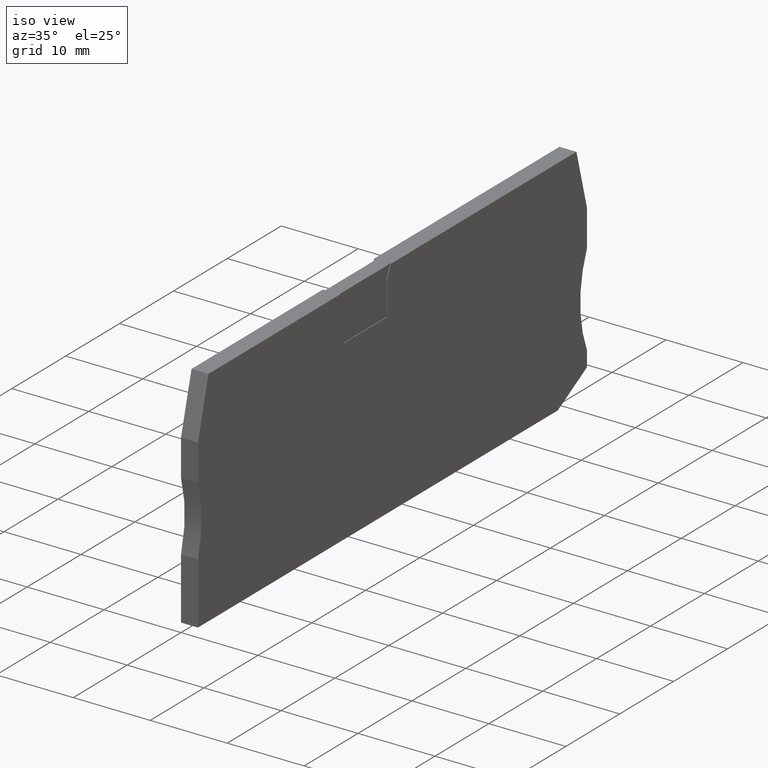
[diagram: clean part render]
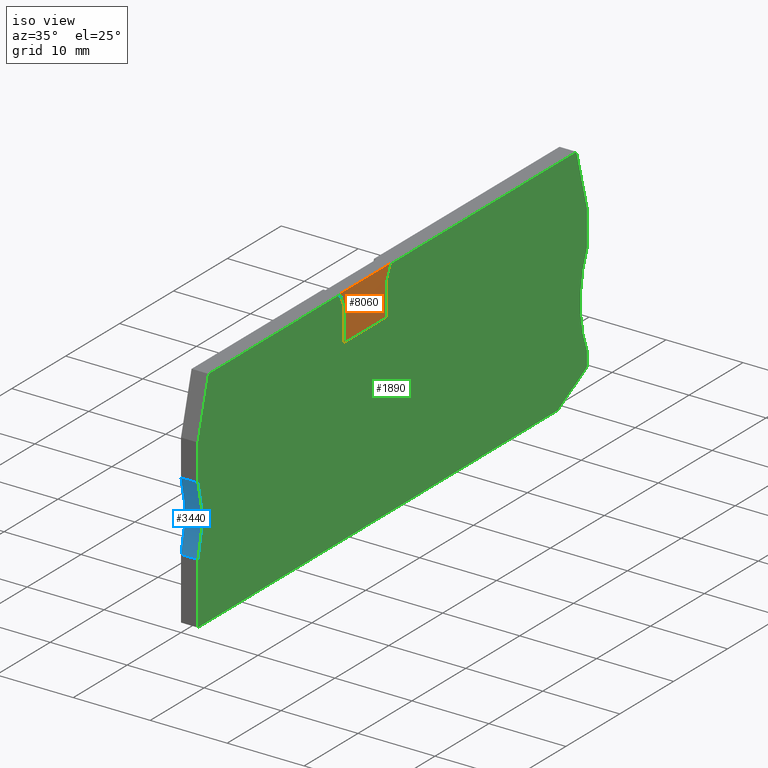
[diagram: same view with three faces highlighted in distinct colors, each labeled with its STEP entity id]
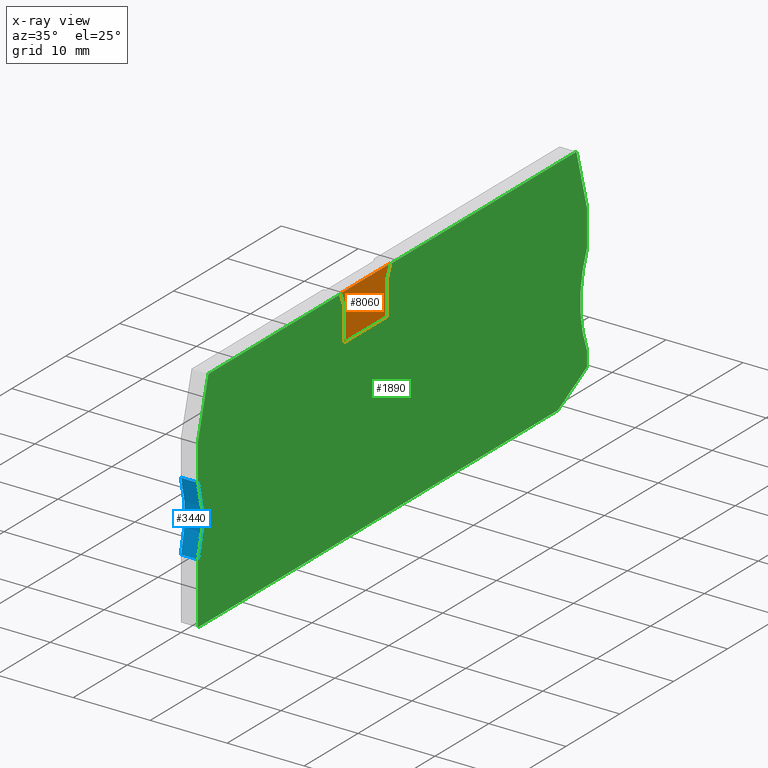
[diagram: x-ray of the same camera — body ghosted, the three highlighted faces saturated]
A machine part, iso view with three faces highlighted in distinct colors.
The next image is the same camera in x-ray (body ghosted, the three faces saturated) — at least one of them is partly hidden behind the body in this view.
Their STEP definitions:

[orange] entity #8060 — the highlighted planar face has unit normal (1, 0, -0).
#4000=CARTESIAN_POINT('',(-7.786332497605,-9.15000000000164,55.27));
#4010=VERTEX_POINT('',#4000);
#4040=CARTESIAN_POINT('',(-6.52682329685704,-12.1300507694268,55.27));
#4050=DIRECTION('',(0.389303997086196,-0.92110933002153,0.));
#4060=VECTOR('',#4050,1.);
#4070=LINE('',#4040,#4060);
#4080=CARTESIAN_POINT('',(-7.06783277832368,-10.8500000000052,55.27));
#4090=VERTEX_POINT('',#4080);
#4100=EDGE_CURVE('',#4010,#4090,#4070,.T.);
#5380=CARTESIAN_POINT('',(-7.06783277832365,-15.1500000000019,55.27));
#5390=VERTEX_POINT('',#5380);
#5420=CARTESIAN_POINT('',(11.4461541156283,-15.1500000000019,55.27));
#5430=DIRECTION('',(1.,-5.55111512312593E-16,0.));
#5440=VECTOR('',#5430,1.);
#5450=LINE('',#5420,#5440);
#5460=CARTESIAN_POINT('',(0.932167221676094,-15.1500000000019,55.27));
#5470=VERTEX_POINT('',#5460);
#5480=EDGE_CURVE('',#5390,#5470,#5450,.T.);
#6850=CARTESIAN_POINT('',(0.932167221676098,-12.1300507694268,55.27));
#6860=DIRECTION('',(-1.05471187339379E-15,-1.,0.));
#6870=VECTOR('',#6860,1.);
#6880=LINE('',#6850,#6870);
#6890=CARTESIAN_POINT('',(0.932167221676108,-10.8499999999525,55.27));
#6900=VERTEX_POINT('',#6890);
#6910=EDGE_CURVE('',#6900,#5470,#6880,.T.);
#7200=CARTESIAN_POINT('',(1.65066694096119,-9.15000000000164,55.27));
#7210=VERTEX_POINT('',#7200);
#7240=CARTESIAN_POINT('',(11.4461541156283,-9.15000000000164,55.27));
#7250=DIRECTION('',(1.,0.,0.));
#7260=VECTOR('',#7250,1.);
#7270=LINE('',#7240,#7260);
#7280=EDGE_CURVE('',#4010,#7210,#7270,.T.);
#7830=CARTESIAN_POINT('',(0.96970121366197,-34.6750000000019,55.27));
#7840=DIRECTION('',(0.,0.,1.));
#7850=DIRECTION('',(1.,0.,0.));
#7860=AXIS2_PLACEMENT_3D('',#7830,#7840,#7850);
#7870=PLANE('',#7860);
#7880=ORIENTED_EDGE('',*,*,#7280,.F.);
#7890=CARTESIAN_POINT('',(0.391157740167493,-12.1300507694268,55.27));
#7900=DIRECTION('',(0.389303997098189,0.921109330016461,0.));
#7910=VECTOR('',#7900,1.);
#7920=LINE('',#7890,#7910);
#7930=EDGE_CURVE('',#6900,#7210,#7920,.T.);
#7940=ORIENTED_EDGE('',*,*,#7930,.T.);
#7950=ORIENTED_EDGE('',*,*,#6910,.F.);
#7960=ORIENTED_EDGE('',*,*,#5480,.T.);
#7970=CARTESIAN_POINT('',(-7.06783277832368,-12.1300507694268,55.27));
#7980=DIRECTION('',(-8.65973959207633E-15,1.,0.));
#7990=VECTOR('',#7980,1.);
#8000=LINE('',#7970,#7990);
#8010=EDGE_CURVE('',#5390,#4090,#8000,.T.);
#8020=ORIENTED_EDGE('',*,*,#8010,.F.);
#8030=ORIENTED_EDGE('',*,*,#4100,.T.);
#8040=EDGE_LOOP('',(#8030,#8020,#7960,#7950,#7940,#7880));
#8050=FACE_OUTER_BOUND('',#8040,.T.);
#8060=ADVANCED_FACE('',(#8050),#7870,.T.);

[blue] entity #3440 — the highlighted cylindrical surface (partial cylindrical patch) has radius 15 mm, axis along (1, 0, -0).
#1000=CARTESIAN_POINT('',(-34.1678327783247,-30.2000000000027,55.37));
#1010=VERTEX_POINT('',#1000);
#1040=CARTESIAN_POINT('',(-48.4769207995789,-25.7000000000027,55.37));
#1050=DIRECTION('',(0.,0.,1.));
#1060=DIRECTION('',(1.,0.,0.));
#1070=AXIS2_PLACEMENT_3D('',#1040,#1050,#1060);
#1080=CIRCLE('',#1070,15.);
#1090=CARTESIAN_POINT('',(-34.1678327783247,-21.2000000000028,55.37));
#1100=VERTEX_POINT('',#1090);
#1110=EDGE_CURVE('',#1010,#1100,#1080,.T.);
#2990=CARTESIAN_POINT('',(-34.1678327783247,-30.2000000000027,53.17));
#3000=VERTEX_POINT('',#2990);
#3030=CARTESIAN_POINT('',(-34.1678327783247,-30.2000000000027,55.37));
#3040=DIRECTION('',(0.,0.,1.));
#3050=VECTOR('',#3040,1.);
#3060=LINE('',#3030,#3050);
#3070=EDGE_CURVE('',#3000,#1010,#3060,.T.);
#3200=CARTESIAN_POINT('',(-48.4769207995789,-25.7000000000027,55.37));
#3210=DIRECTION('',(0.,0.,1.));
#3220=DIRECTION('',(1.,0.,0.));
#3230=AXIS2_PLACEMENT_3D('',#3200,#3210,#3220);
#3240=CYLINDRICAL_SURFACE('',#3230,15.);
#3250=ORIENTED_EDGE('',*,*,#3070,.T.);
#3260=CARTESIAN_POINT('',(-48.4769207995789,-25.7000000000027,53.17));
#3270=DIRECTION('',(0.,0.,1.));
#3280=DIRECTION('',(1.,0.,0.));
#3290=AXIS2_PLACEMENT_3D('',#3260,#3270,#3280);
#3300=CIRCLE('',#3290,15.);
#3310=CARTESIAN_POINT('',(-34.1678327783247,-21.2000000000028,53.17));
#3320=VERTEX_POINT('',#3310);
#3330=EDGE_CURVE('',#3000,#3320,#3300,.T.);
#3340=ORIENTED_EDGE('',*,*,#3330,.F.);
#3350=CARTESIAN_POINT('',(-34.1678327783247,-21.2000000000028,55.37));
#3360=DIRECTION('',(0.,0.,1.));
#3370=VECTOR('',#3360,1.);
#3380=LINE('',#3350,#3370);
#3390=EDGE_CURVE('',#3320,#1100,#3380,.T.);
#3400=ORIENTED_EDGE('',*,*,#3390,.F.);
#3410=ORIENTED_EDGE('',*,*,#1110,.T.);
#3420=EDGE_LOOP('',(#3410,#3400,#3340,#3250));
#3430=FACE_OUTER_BOUND('',#3420,.T.);
#3440=ADVANCED_FACE('',(#3430),#3240,.F.);

[green] entity #1890 — the highlighted planar face has unit normal (-1, -0, 0).
#480=CARTESIAN_POINT('',(-4.68088356410453,-22.3521492060807,55.37));
#490=DIRECTION('',(0.,0.,-1.));
#500=DIRECTION('',(-1.,0.,0.));
#510=AXIS2_PLACEMENT_3D('',#480,#490,#500);
#520=PLANE('',#510);
#530=CARTESIAN_POINT('',(38.0321672216756,-12.1300507694265,55.37));
#540=DIRECTION('',(0.,1.,0.));
#550=VECTOR('',#540,1.);
#560=LINE('',#530,#550);
#570=CARTESIAN_POINT('',(38.0321672216756,-21.2000000000027,55.37));
#580=VERTEX_POINT('',#570);
#590=CARTESIAN_POINT('',(38.0321672216756,-16.4655444566078,55.37));
#600=VERTEX_POINT('',#590);
#610=EDGE_CURVE('',#580,#600,#560,.T.);
#620=ORIENTED_EDGE('',*,*,#610,.T.);
#630=CARTESIAN_POINT('',(51.7798943065431,-27.2000000000027,55.37));
#640=DIRECTION('',(0.,0.,1.));
#650=DIRECTION('',(1.,0.,0.));
#660=AXIS2_PLACEMENT_3D('',#630,#640,#650);
#670=CIRCLE('',#660,15.);
#680=CARTESIAN_POINT('',(38.0321672216756,-33.2000000000027,55.37));
#690=VERTEX_POINT('',#680);
#700=EDGE_CURVE('',#580,#690,#670,.T.);
#710=ORIENTED_EDGE('',*,*,#700,.F.);
#720=CARTESIAN_POINT('',(38.0321672216756,-12.1300507694265,55.37));
#730=DIRECTION('',(0.,1.,0.));
#740=VECTOR('',#730,1.);
#750=LINE('',#720,#740);
#760=CARTESIAN_POINT('',(38.0321672216756,-35.2,55.37));
#770=VERTEX_POINT('',#760);
#780=EDGE_CURVE('',#770,#690,#750,.T.);
#790=ORIENTED_EDGE('',*,*,#780,.T.);
#800=CARTESIAN_POINT('',(11.4461541156283,-49.9500920346874,55.37));
#810=DIRECTION('',(0.874435210897321,0.485142311021165,0.));
#820=VECTOR('',#810,1.);
#830=LINE('',#800,#820);
#840=CARTESIAN_POINT('',(32.6248762616859,-38.2000000000015,55.37));
#850=VERTEX_POINT('',#840);
#860=EDGE_CURVE('',#850,#770,#830,.T.);
#870=ORIENTED_EDGE('',*,*,#860,.T.);
#880=CARTESIAN_POINT('',(11.4461541156283,-38.2000000000015,55.37));
#890=DIRECTION('',(1.,0.,0.));
#900=VECTOR('',#890,1.);
#910=LINE('',#880,#900);
#920=CARTESIAN_POINT('',(-34.1678327783247,-38.2000000000015,55.37));
#930=VERTEX_POINT('',#920);
#940=EDGE_CURVE('',#930,#850,#910,.T.);
#950=ORIENTED_EDGE('',*,*,#940,.T.);
#960=CARTESIAN_POINT('',(-34.1678327783247,-12.1300507694265,55.37));
#970=DIRECTION('',(0.,-1.,0.));
#980=VECTOR('',#970,1.);
#990=LINE('',#960,#980);
#1000=CARTESIAN_POINT('',(-34.1678327783247,-30.2000000000027,55.37));
#1010=VERTEX_POINT('',#1000);
#1020=EDGE_CURVE('',#1010,#930,#990,.T.);
#1030=ORIENTED_EDGE('',*,*,#1020,.T.);
#1040=CARTESIAN_POINT('',(-48.4769207995789,-25.7000000000027,55.37));
#1050=DIRECTION('',(0.,0.,1.));
#1060=DIRECTION('',(1.,0.,0.));
#1070=AXIS2_PLACEMENT_3D('',#1040,#1050,#1060);
#1080=CIRCLE('',#1070,15.);
#1090=CARTESIAN_POINT('',(-34.1678327783247,-21.2000000000028,55.37));
#1100=VERTEX_POINT('',#1090);
#1110=EDGE_CURVE('',#1010,#1100,#1080,.T.);
#1120=ORIENTED_EDGE('',*,*,#1110,.F.);
#1130=CARTESIAN_POINT('',(-34.1678327783247,-12.1300507694265,55.37));
#1140=DIRECTION('',(0.,-1.,0.));
#1150=VECTOR('',#1140,1.);
#1160=LINE('',#1130,#1150);
#1170=CARTESIAN_POINT('',(-34.1678327783247,-16.4655444566093,55.37));
#1180=VERTEX_POINT('',#1170);
#1190=EDGE_CURVE('',#1180,#1100,#1160,.T.);
#1200=ORIENTED_EDGE('',*,*,#1190,.T.);
#1210=CARTESIAN_POINT('',(-33.0061407460509,-12.1300507694265,55.37));
#1220=DIRECTION('',(-0.258819045103118,-0.965925826288908,0.));
#1230=VECTOR('',#1220,1.);
#1240=LINE('',#1210,#1230);
#1250=CARTESIAN_POINT('',(-32.2076385489778,-9.15000000000164,55.37));
#1260=VERTEX_POINT('',#1250);
#1270=EDGE_CURVE('',#1260,#1180,#1240,.T.);
#1280=ORIENTED_EDGE('',*,*,#1270,.T.);
#1290=CARTESIAN_POINT('',(11.4461541156283,-9.15000000000164,55.37));
#1300=DIRECTION('',(-1.,0.,0.));
#1310=VECTOR('',#1300,1.);
#1320=LINE('',#1290,#1310);
#1330=CARTESIAN_POINT('',(-7.78633249760507,-9.15000000000164,55.37));
#1340=VERTEX_POINT('',#1330);
#1350=EDGE_CURVE('',#1340,#1260,#1320,.T.);
#1360=ORIENTED_EDGE('',*,*,#1350,.T.);
#1370=CARTESIAN_POINT('',(-6.52682329685711,-12.1300507694265,55.37));
#1380=DIRECTION('',(0.389303997086196,-0.92110933002153,0.));
#1390=VECTOR('',#1380,1.);
#1400=LINE('',#1370,#1390);
#1410=CARTESIAN_POINT('',(-7.06783277832368,-10.8500000000052,55.37));
#1420=VERTEX_POINT('',#1410);
#1430=EDGE_CURVE('',#1340,#1420,#1400,.T.);
#1440=ORIENTED_EDGE('',*,*,#1430,.F.);
#1450=CARTESIAN_POINT('',(-7.06783277832367,-12.1300507694265,55.37));
#1460=DIRECTION('',(8.65973959207633E-15,-1.,0.));
#1470=VECTOR('',#1460,1.);
#1480=LINE('',#1450,#1470);
#1490=CARTESIAN_POINT('',(-7.06783277832365,-15.1500000000019,55.37));
#1500=VERTEX_POINT('',#1490);
#1510=EDGE_CURVE('',#1420,#1500,#1480,.T.);
#1520=ORIENTED_EDGE('',*,*,#1510,.F.);
#1530=CARTESIAN_POINT('',(11.4461541156283,-15.1500000000019,55.37));
#1540=DIRECTION('',(1.,-5.55111512312593E-16,0.));
#1550=VECTOR('',#1540,1.);
#1560=LINE('',#1530,#1550);
#1570=CARTESIAN_POINT('',(0.932167221676103,-15.1500000000019,55.37));
#1580=VERTEX_POINT('',#1570);
#1590=EDGE_CURVE('',#1500,#1580,#1560,.T.);
#1600=ORIENTED_EDGE('',*,*,#1590,.F.);
#1610=CARTESIAN_POINT('',(0.932167221676107,-12.1300507694265,55.37));
#1620=DIRECTION('',(1.05471187339379E-15,1.,0.));
#1630=VECTOR('',#1620,1.);
#1640=LINE('',#1610,#1630);
#1650=CARTESIAN_POINT('',(0.932167221676108,-10.8499999999525,55.37));
#1660=VERTEX_POINT('',#1650);
#1670=EDGE_CURVE('',#1580,#1660,#1640,.T.);
#1680=ORIENTED_EDGE('',*,*,#1670,.F.);
#1690=CARTESIAN_POINT('',(0.391157740167616,-12.1300507694265,55.37));
#1700=DIRECTION('',(0.389303997098189,0.921109330016461,0.));
#1710=VECTOR('',#1700,1.);
#1720=LINE('',#1690,#1710);
#1730=CARTESIAN_POINT('',(1.65066694096131,-9.15000000000164,55.37));
#1740=VERTEX_POINT('',#1730);
#1750=EDGE_CURVE('',#1660,#1740,#1720,.T.);
#1760=ORIENTED_EDGE('',*,*,#1750,.F.);
#1770=CARTESIAN_POINT('',(36.0719729923292,-9.15000000000164,55.37));
#1780=VERTEX_POINT('',#1770);
#1790=EDGE_CURVE('',#1780,#1740,#1320,.T.);
#1800=ORIENTED_EDGE('',*,*,#1790,.T.);
#1810=CARTESIAN_POINT('',(36.8704751894023,-12.1300507694265,55.37));
#1820=DIRECTION('',(-0.258819045103111,0.96592582628891,0.));
#1830=VECTOR('',#1820,1.);
#1840=LINE('',#1810,#1830);
#1850=EDGE_CURVE('',#600,#1780,#1840,.T.);
#1860=ORIENTED_EDGE('',*,*,#1850,.T.);
#1870=EDGE_LOOP('',(#1860,#1800,#1760,#1680,#1600,#1520,#1440,#1360,
#1280,#1200,#1120,#1030,#950,#870,#790,#710,#620));
#1880=FACE_OUTER_BOUND('',#1870,.T.);
#1890=ADVANCED_FACE('',(#1880),#520,.F.);